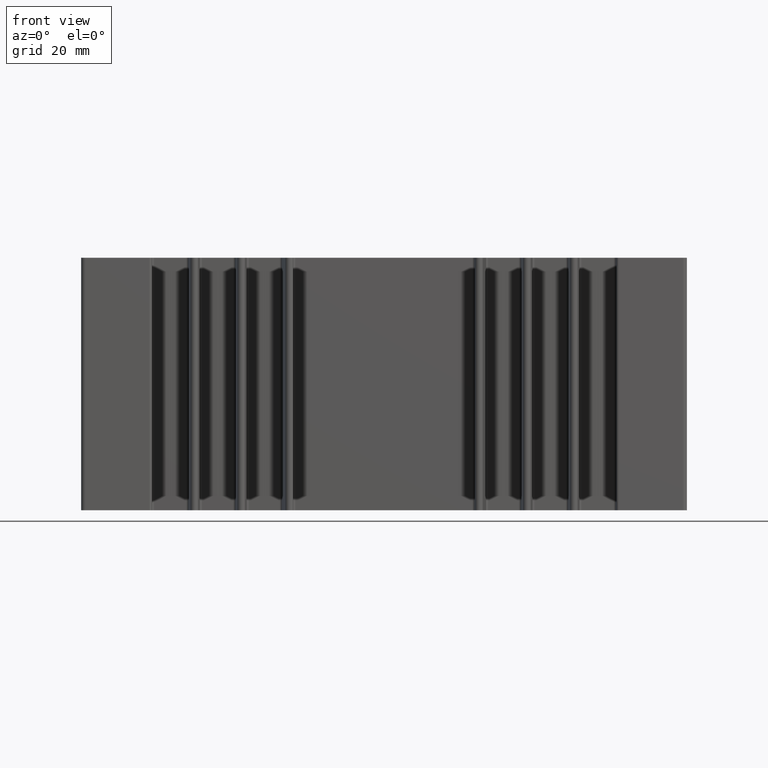
[diagram: clean part render]
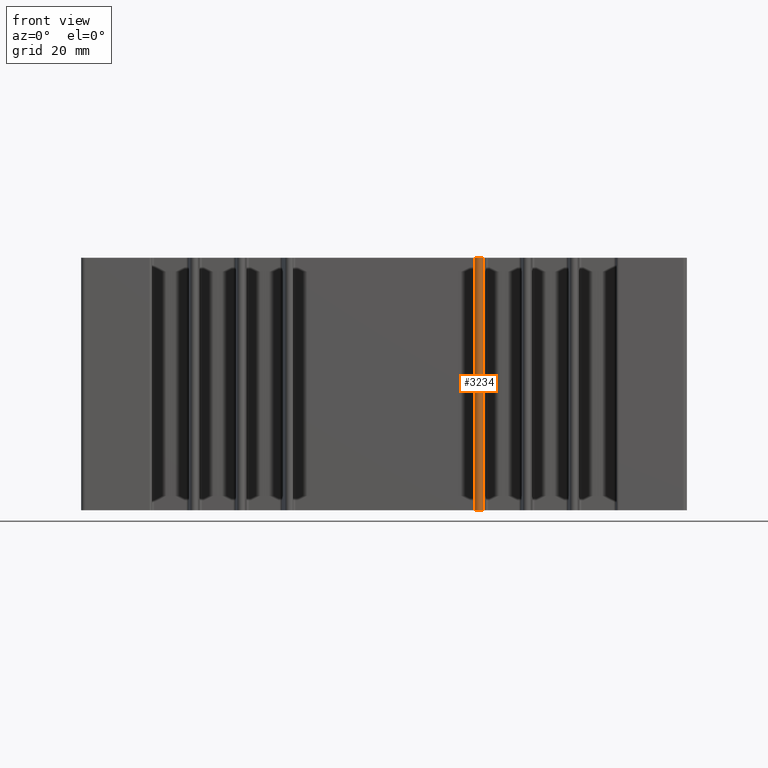
[diagram: same view with one face highlighted and labeled with its STEP entity id]
A machine part, front view. The second image highlights one B-rep face of the part: STEP entity #3234.
In plain terms, the highlighted cylindrical surface (edge-blend (fillet) strip) has radius 0.8 mm, axis along (0, 0, -1).
Its self-contained STEP definition (entity closure, byte-faithful):
#322 = LINE ( 'NONE', #2897, #1965 ) ;
#628 = DIRECTION ( 'NONE',  ( -1.000000000000000000, 0.0000000000000000000, 0.0000000000000000000 ) ) ;
#824 = CARTESIAN_POINT ( 'NONE',  ( 17.99999964180510048, -29.22808179197850009, 0.0000000000000000000 ) ) ;
#1120 = AXIS2_PLACEMENT_3D ( 'NONE', #2490, #5064, #7637 ) ;
#1259 = CYLINDRICAL_SURFACE ( 'NONE', #1402, 0.8000000000000090372 ) ;
#1321 = LINE ( 'NONE', #3892, #5230 ) ;
#1402 = AXIS2_PLACEMENT_3D ( 'NONE', #3832, #6400, #628 ) ;
#1965 = VECTOR ( 'NONE', #5465, 1000.000000000000000 ) ;
#2032 = DIRECTION ( 'NONE',  ( 0.0000000000000000000, 0.0000000000000000000, 1.000000000000000000 ) ) ;
#2490 = CARTESIAN_POINT ( 'NONE',  ( 18.79999964180510119, -29.22808179197850009, 50.00000000000000000 ) ) ;
#2897 = CARTESIAN_POINT ( 'NONE',  ( 17.99999964180510048, -29.22808179197850009, 50.00000000000000000 ) ) ;
#3072 = VERTEX_POINT ( 'NONE', #6127 ) ;
#3234 = ADVANCED_FACE ( 'NONE', ( #7034 ), #1259, .T. ) ;
#3267 = ORIENTED_EDGE ( 'NONE', *, *, #6111, .T. ) ;
#3832 = CARTESIAN_POINT ( 'NONE',  ( 18.79999964180510119, -29.22808179197850009, 50.00000000000000000 ) ) ;
#3853 = VERTEX_POINT ( 'NONE', #4245 ) ;
#3892 = CARTESIAN_POINT ( 'NONE',  ( 19.59979240841805037, -29.24628977027299825, 50.00000000000000000 ) ) ;
#4113 = EDGE_CURVE ( 'NONE', #5304, #3072, #4386, .T. ) ;
#4245 = CARTESIAN_POINT ( 'NONE',  ( 19.59979240841805037, -29.24628977027299825, 50.00000000000000000 ) ) ;
#4386 = CIRCLE ( 'NONE', #8031, 0.8000000000000090372 ) ;
#4413 = EDGE_CURVE ( 'NONE', #8162, #3853, #7318, .T. ) ;
#4446 = ORIENTED_EDGE ( 'NONE', *, *, #4113, .T. ) ;
#4602 = DIRECTION ( 'NONE',  ( 1.000000000000000000, 0.0000000000000000000, 0.0000000000000000000 ) ) ;
#5064 = DIRECTION ( 'NONE',  ( 0.0000000000000000000, 0.0000000000000000000, 1.000000000000000000 ) ) ;
#5230 = VECTOR ( 'NONE', #6456, 1000.000000000000000 ) ;
#5304 = VERTEX_POINT ( 'NONE', #824 ) ;
#5465 = DIRECTION ( 'NONE',  ( 0.0000000000000000000, 0.0000000000000000000, -1.000000000000000000 ) ) ;
#6111 = EDGE_CURVE ( 'NONE', #8162, #5304, #322, .T. ) ;
#6127 = CARTESIAN_POINT ( 'NONE',  ( 19.59979240841805037, -29.24628977027299825, 0.0000000000000000000 ) ) ;
#6400 = DIRECTION ( 'NONE',  ( 0.0000000000000000000, 0.0000000000000000000, -1.000000000000000000 ) ) ;
#6456 = DIRECTION ( 'NONE',  ( 0.0000000000000000000, 0.0000000000000000000, -1.000000000000000000 ) ) ;
#6718 = EDGE_LOOP ( 'NONE', ( #4446, #7568, #7856, #3267 ) ) ;
#7034 = FACE_OUTER_BOUND ( 'NONE', #6718, .T. ) ;
#7318 = CIRCLE ( 'NONE', #1120, 0.8000000000000090372 ) ;
#7516 = CARTESIAN_POINT ( 'NONE',  ( 17.99999964180510048, -29.22808179197850009, 50.00000000000000000 ) ) ;
#7567 = EDGE_CURVE ( 'NONE', #3853, #3072, #1321, .T. ) ;
#7568 = ORIENTED_EDGE ( 'NONE', *, *, #7567, .F. ) ;
#7637 = DIRECTION ( 'NONE',  ( 1.000000000000000000, 0.0000000000000000000, 0.0000000000000000000 ) ) ;
#7811 = CARTESIAN_POINT ( 'NONE',  ( 18.79999964180510119, -29.22808179197850009, 0.0000000000000000000 ) ) ;
#7856 = ORIENTED_EDGE ( 'NONE', *, *, #4413, .F. ) ;
#8031 = AXIS2_PLACEMENT_3D ( 'NONE', #7811, #2032, #4602 ) ;
#8162 = VERTEX_POINT ( 'NONE', #7516 ) ;